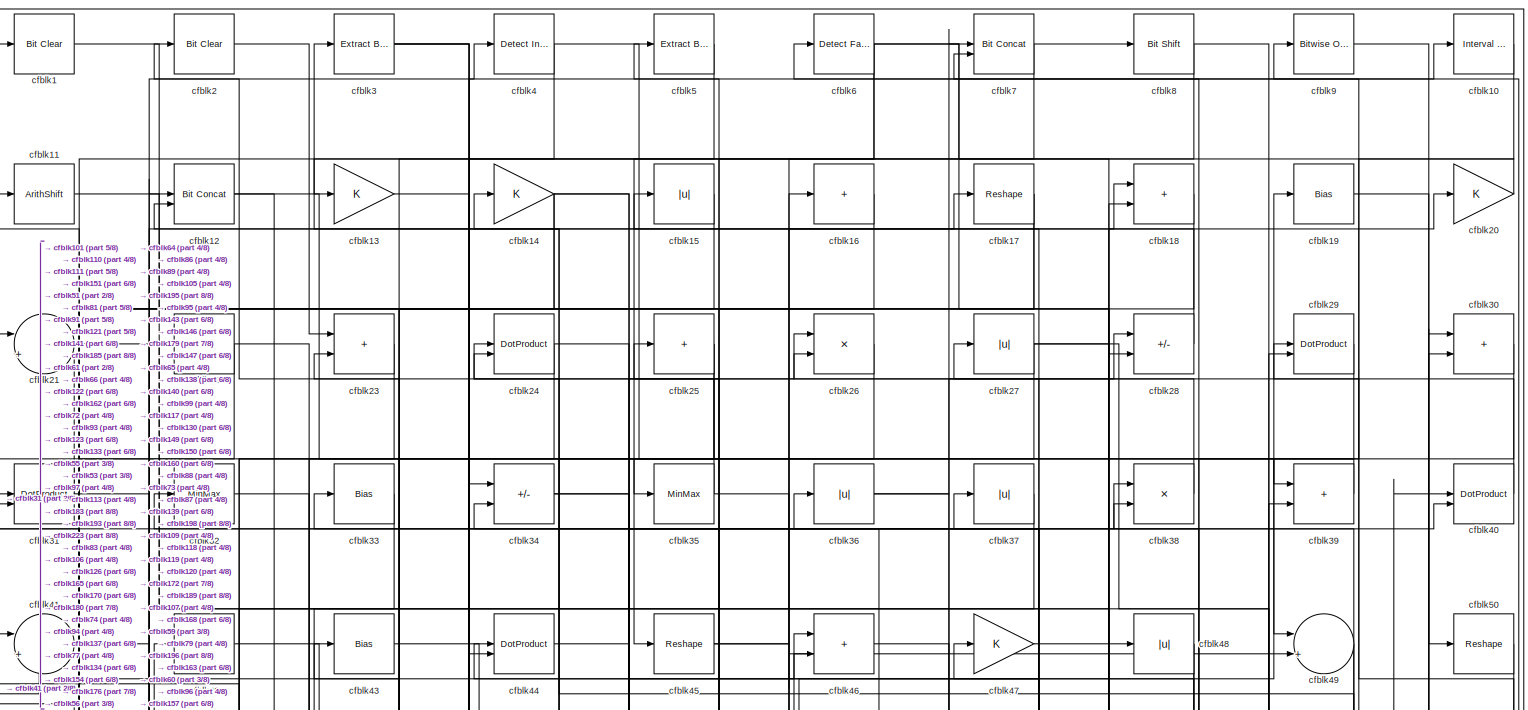
[diagram: root canvas - part 1/8, full width, top band]
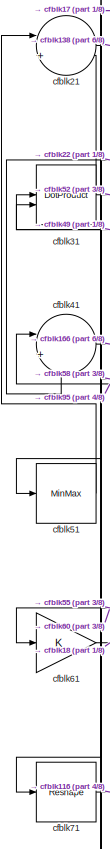
[diagram: root canvas - part 2/8, top left region]
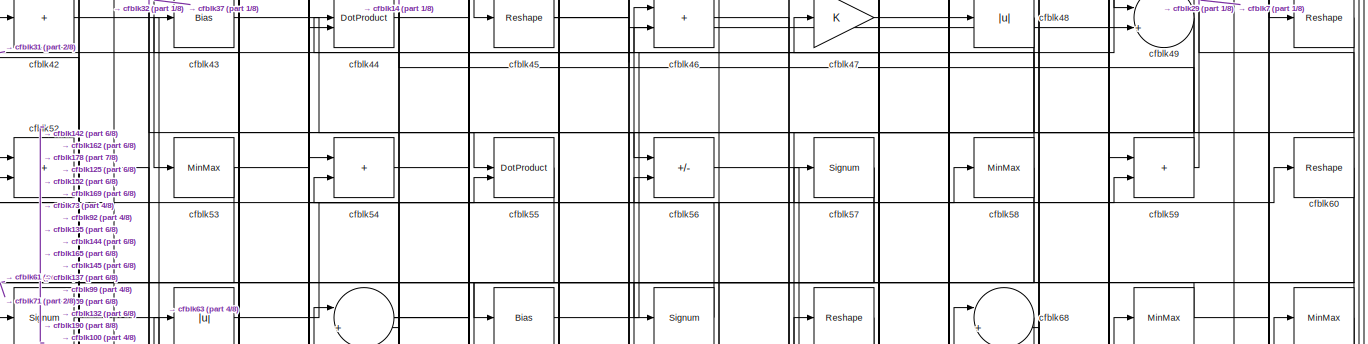
[diagram: root canvas - part 3/8, full width, top band]
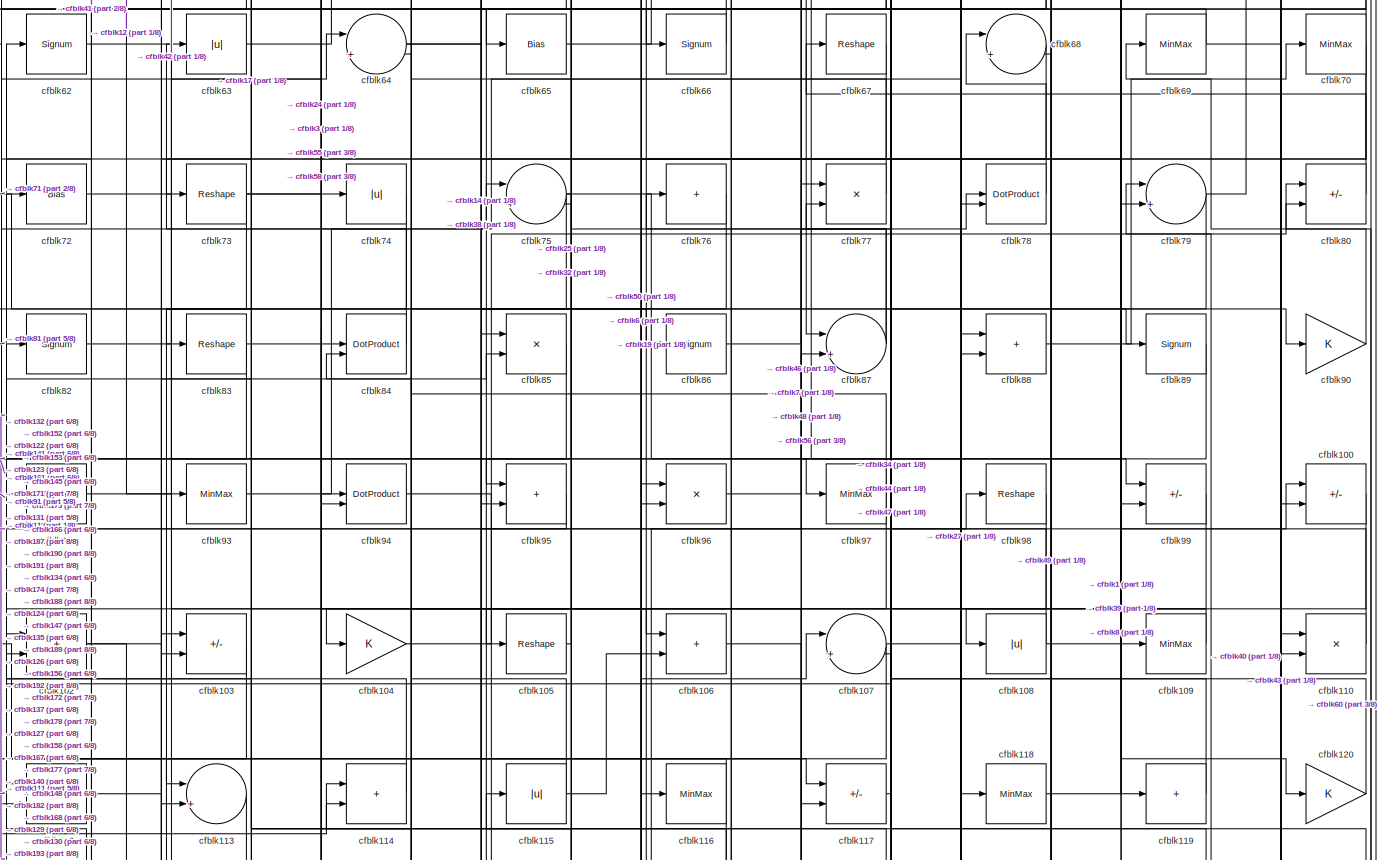
[diagram: root canvas - part 4/8, full width, middle band]
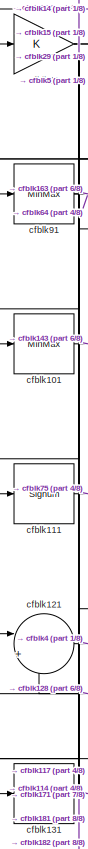
[diagram: root canvas - part 5/8, middle left region]
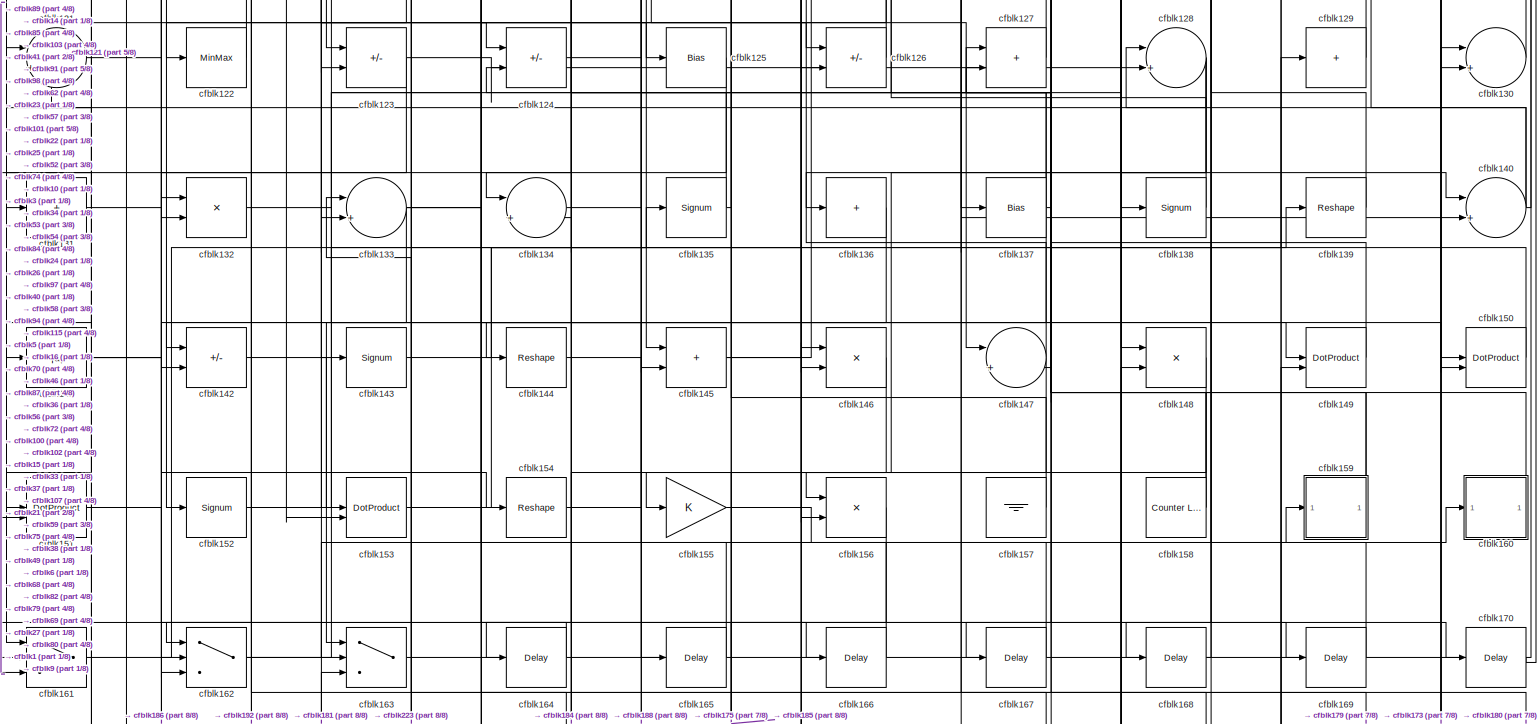
[diagram: root canvas - part 6/8, full width, middle band]
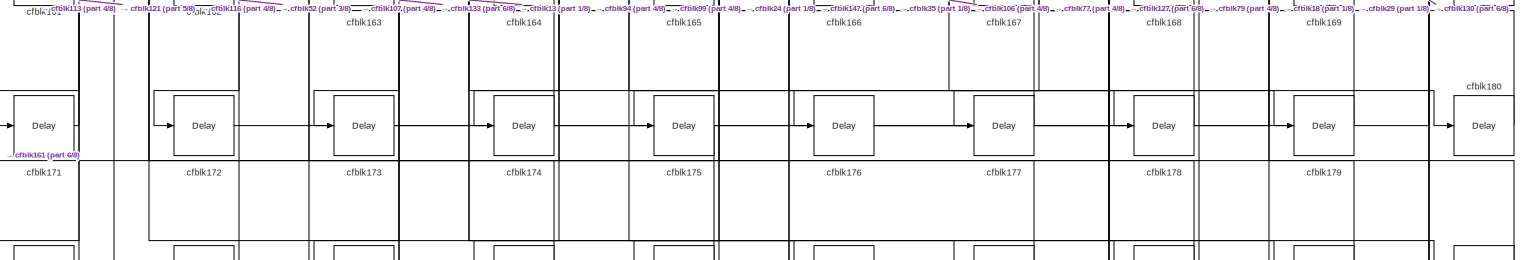
[diagram: root canvas - part 7/8, full width, bottom band]
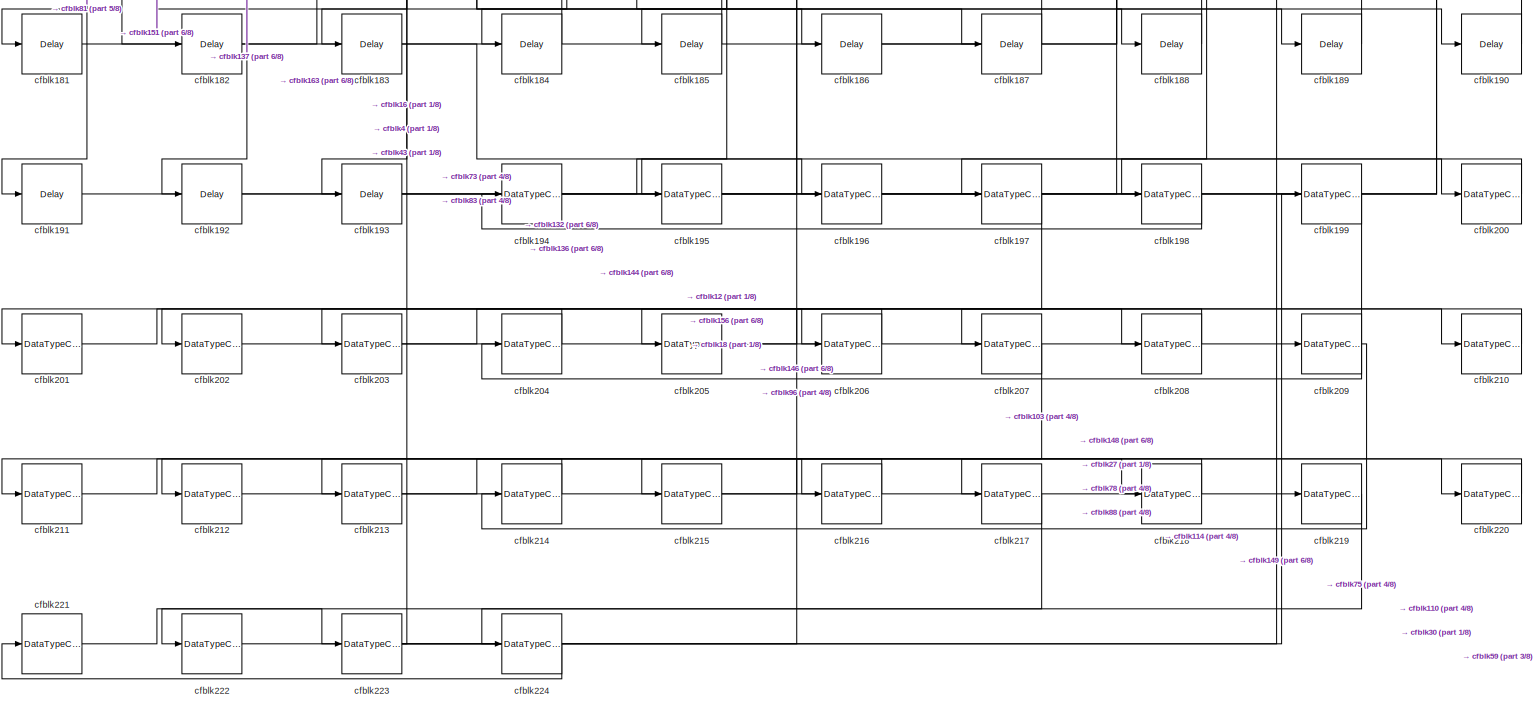
[diagram: root canvas - part 8/8, full width, bottom band]
MODEL slx_d020cfffdb7f
KIND model
CONFIG AbsTol = auto
CONFIG EnableMultiTasking = off
CONFIG FixedStep = auto
CONFIG MaxStep = auto
CONFIG MinStep = auto
CONFIG RelTol = 1e-3
CONFIG SampleTimeConstraint = Unconstrained
CONFIG SolverName = VariableStepAuto
CONFIG StartTime = 0.0
CONFIG StopTime = 10.0
BLOCK [Reference] cfblk1  REF=simulink/Logic and Bit
Operations/Bit Clear
  LibrarySourceBlock = hdlsllib/Logic and Bit\nOperations/Bit Clear
  SourceBlock = simulink/Logic and Bit\nOperations/Bit Clear
  SourceType = Bit Clear
BLOCK [Reference] cfblk10  REF=hdlsllib/Logic and Bit
Operations/Interval Test
  SourceBlock = hdlsllib/Logic and Bit\nOperations/Interval Test
  SourceType = Interval Test
BLOCK [Sum] cfblk100
  IconShape = rectangular
  Inputs = +-
BLOCK [MinMax] cfblk101
BLOCK [Sum] cfblk102
  IconShape = rectangular
BLOCK [Sum] cfblk103
  IconShape = rectangular
  Inputs = +-
BLOCK [Gain] cfblk104
BLOCK [Reshape] cfblk105
BLOCK [Sum] cfblk106
  IconShape = rectangular
BLOCK [Sum] cfblk107
  Inputs = |++
BLOCK [Abs] cfblk108
  SaturateOnIntegerOverflow = off
BLOCK [MinMax] cfblk109
BLOCK [ArithShift] cfblk11
  BitShiftNumber = 8
  InputPortMap = u0
BLOCK [Product] cfblk110
  Inputs = */
  RndMeth = Zero
  SaturateOnIntegerOverflow = on
BLOCK [Signum] cfblk111
BLOCK [Product] cfblk112
  Inputs = */
  RndMeth = Zero
  SaturateOnIntegerOverflow = on
BLOCK [Sum] cfblk113
  Inputs = |++
BLOCK [Sum] cfblk114
  IconShape = rectangular
BLOCK [Abs] cfblk115
  SaturateOnIntegerOverflow = off
BLOCK [MinMax] cfblk116
BLOCK [Sum] cfblk117
  IconShape = rectangular
  Inputs = +-
BLOCK [MinMax] cfblk118
BLOCK [Sum] cfblk119
  IconShape = rectangular
  Inputs = +
BLOCK [Reference] cfblk12  REF=hdlsllib/Logic and Bit
Operations/Bit Concat
  SourceBlock = hdlsllib/Logic and Bit\nOperations/Bit Concat
  SourceType = Bit Concat
BLOCK [Gain] cfblk120
BLOCK [Sum] cfblk121
  Inputs = |++
BLOCK [MinMax] cfblk122
BLOCK [Sum] cfblk123
  IconShape = rectangular
  Inputs = +-
BLOCK [Sum] cfblk124
  IconShape = rectangular
  Inputs = +-
BLOCK [Bias] cfblk125
  Bias = 0.0
  SaturateOnIntegerOverflow = off
BLOCK [Sum] cfblk126
  IconShape = rectangular
  Inputs = +-
BLOCK [Sum] cfblk127
  IconShape = rectangular
BLOCK [Sum] cfblk128
  Inputs = |++
BLOCK [Sum] cfblk129
  IconShape = rectangular
  Inputs = +
BLOCK [Gain] cfblk13
BLOCK [Sum] cfblk130
  Inputs = |++
BLOCK [Sum] cfblk131
  IconShape = rectangular
  Inputs = +
BLOCK [Product] cfblk132
  Inputs = */
  RndMeth = Zero
  SaturateOnIntegerOverflow = on
BLOCK [Sum] cfblk133
  Inputs = |++
BLOCK [Sum] cfblk134
  Inputs = |++
BLOCK [Signum] cfblk135
BLOCK [Sum] cfblk136
  IconShape = rectangular
  Inputs = +
BLOCK [Bias] cfblk137
  Bias = 0.0
  SaturateOnIntegerOverflow = off
BLOCK [Signum] cfblk138
BLOCK [Reshape] cfblk139
BLOCK [Gain] cfblk14
BLOCK [Sum] cfblk140
  Inputs = |++
BLOCK [Abs] cfblk141
  SaturateOnIntegerOverflow = off
BLOCK [Sum] cfblk142
  IconShape = rectangular
  Inputs = +-
BLOCK [Signum] cfblk143
BLOCK [Reshape] cfblk144
BLOCK [Sum] cfblk145
  IconShape = rectangular
BLOCK [Product] cfblk146
  Inputs = */
  RndMeth = Zero
  SaturateOnIntegerOverflow = on
BLOCK [Sum] cfblk147
  Inputs = |++
BLOCK [Product] cfblk148
  Inputs = */
  RndMeth = Zero
  SaturateOnIntegerOverflow = on
BLOCK [DotProduct] cfblk149
  OutDataTypeStr = Inherit: Inherit via internal rule
BLOCK [Abs] cfblk15
  SaturateOnIntegerOverflow = off
BLOCK [DotProduct] cfblk150
  OutDataTypeStr = Inherit: Inherit via internal rule
BLOCK [DotProduct] cfblk151
  OutDataTypeStr = Inherit: Inherit via internal rule
BLOCK [Signum] cfblk152
BLOCK [DotProduct] cfblk153
  OutDataTypeStr = Inherit: Inherit via internal rule
BLOCK [Reshape] cfblk154
BLOCK [Gain] cfblk155
BLOCK [Product] cfblk156
  Inputs = */
  RndMeth = Zero
  SaturateOnIntegerOverflow = on
BLOCK [Ground] cfblk157
BLOCK [Reference] cfblk158  REF=hdlsllib/Sources/Counter
Limited
  SourceBlock = hdlsllib/Sources/Counter\nLimited
  SourceType = Counter Limited
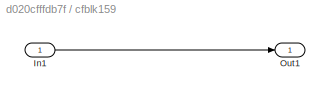
BLOCK [SubSystem] cfblk159
  LibrarySourceBlock = hdlsllib/Ports &\nSubsystems/Subsystem
BLOCK [Inport] cfblk159/In1
BLOCK [Outport] cfblk159/Out1
BLOCK [Sum] cfblk16
  IconShape = rectangular
  Inputs = +
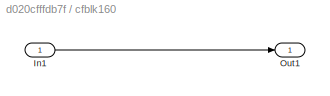
BLOCK [SubSystem] cfblk160
  LibrarySourceBlock = hdlsllib/Ports &\nSubsystems/Subsystem
BLOCK [Inport] cfblk160/In1
BLOCK [Outport] cfblk160/Out1
BLOCK [Switch] cfblk161
  InputSameDT = off
  SaturateOnIntegerOverflow = off
BLOCK [Switch] cfblk162
  InputSameDT = off
  SaturateOnIntegerOverflow = off
BLOCK [Switch] cfblk163
  InputSameDT = off
  SaturateOnIntegerOverflow = off
BLOCK [Delay] cfblk164
  InputPortMap = u0
  SampleTime = 1
BLOCK [Delay] cfblk165
  InputPortMap = u0
  SampleTime = 1
BLOCK [Delay] cfblk166
  InputPortMap = u0
  SampleTime = 1
BLOCK [Delay] cfblk167
  InputPortMap = u0
  SampleTime = 1
BLOCK [Delay] cfblk168
  InputPortMap = u0
  SampleTime = 1
BLOCK [Delay] cfblk169
  InputPortMap = u0
  SampleTime = 1
BLOCK [Reshape] cfblk17
BLOCK [Delay] cfblk170
  InputPortMap = u0
  SampleTime = 1
BLOCK [Delay] cfblk171
  InputPortMap = u0
  SampleTime = 1
BLOCK [Delay] cfblk172
  InputPortMap = u0
  SampleTime = 1
BLOCK [Delay] cfblk173
  InputPortMap = u0
  SampleTime = 1
BLOCK [Delay] cfblk174
  InputPortMap = u0
  SampleTime = 1
BLOCK [Delay] cfblk175
  InputPortMap = u0
  SampleTime = 1
BLOCK [Delay] cfblk176
  InputPortMap = u0
  SampleTime = 1
BLOCK [Delay] cfblk177
  InputPortMap = u0
  SampleTime = 1
BLOCK [Delay] cfblk178
  InputPortMap = u0
  SampleTime = 1
BLOCK [Delay] cfblk179
  InputPortMap = u0
  SampleTime = 1
BLOCK [Sum] cfblk18
  IconShape = rectangular
BLOCK [Delay] cfblk180
  InputPortMap = u0
  SampleTime = 1
BLOCK [Delay] cfblk181
  InputPortMap = u0
  SampleTime = 1
BLOCK [Delay] cfblk182
  InputPortMap = u0
  SampleTime = 1
BLOCK [Delay] cfblk183
  InputPortMap = u0
  SampleTime = 1
BLOCK [Delay] cfblk184
  InputPortMap = u0
  SampleTime = 1
BLOCK [Delay] cfblk185
  InputPortMap = u0
  SampleTime = 1
BLOCK [Delay] cfblk186
  InputPortMap = u0
  SampleTime = 1
BLOCK [Delay] cfblk187
  InputPortMap = u0
  SampleTime = 1
BLOCK [Delay] cfblk188
  InputPortMap = u0
  SampleTime = 1
BLOCK [Delay] cfblk189
  InputPortMap = u0
  SampleTime = 1
BLOCK [Bias] cfblk19
  Bias = 0.0
  SaturateOnIntegerOverflow = off
BLOCK [Delay] cfblk190
  InputPortMap = u0
  SampleTime = 1
BLOCK [Delay] cfblk191
  InputPortMap = u0
  SampleTime = 1
BLOCK [Delay] cfblk192
  InputPortMap = u0
  SampleTime = 1
BLOCK [Delay] cfblk193
  InputPortMap = u0
  SampleTime = 1
BLOCK [DataTypeConversion] cfblk194
  RndMeth = Floor
  SaturateOnIntegerOverflow = off
BLOCK [DataTypeConversion] cfblk195
  OutDataTypeStr = uint8
  RndMeth = Floor
  SaturateOnIntegerOverflow = off
BLOCK [DataTypeConversion] cfblk196
  OutDataTypeStr = uint8
  RndMeth = Floor
  SaturateOnIntegerOverflow = off
BLOCK [DataTypeConversion] cfblk197
  RndMeth = Floor
  SaturateOnIntegerOverflow = off
BLOCK [DataTypeConversion] cfblk198
  OutDataTypeStr = uint8
  RndMeth = Floor
  SaturateOnIntegerOverflow = off
BLOCK [DataTypeConversion] cfblk199
  RndMeth = Floor
  SaturateOnIntegerOverflow = off
BLOCK [Reference] cfblk2  REF=simulink/Logic and Bit
Operations/Bit Clear
  LibrarySourceBlock = hdlsllib/Logic and Bit\nOperations/Bit Clear
  SourceBlock = simulink/Logic and Bit\nOperations/Bit Clear
  SourceType = Bit Clear
BLOCK [Gain] cfblk20
BLOCK [DataTypeConversion] cfblk200
  OutDataTypeStr = uint8
  RndMeth = Floor
  SaturateOnIntegerOverflow = off
BLOCK [DataTypeConversion] cfblk201
  RndMeth = Floor
  SaturateOnIntegerOverflow = off
BLOCK [DataTypeConversion] cfblk202
  OutDataTypeStr = uint8
  RndMeth = Floor
  SaturateOnIntegerOverflow = off
BLOCK [DataTypeConversion] cfblk203
  RndMeth = Floor
  SaturateOnIntegerOverflow = off
BLOCK [DataTypeConversion] cfblk204
  OutDataTypeStr = uint8
  RndMeth = Floor
  SaturateOnIntegerOverflow = off
BLOCK [DataTypeConversion] cfblk205
  RndMeth = Floor
  SaturateOnIntegerOverflow = off
BLOCK [DataTypeConversion] cfblk206
  OutDataTypeStr = uint8
  RndMeth = Floor
  SaturateOnIntegerOverflow = off
BLOCK [DataTypeConversion] cfblk207
  RndMeth = Floor
  SaturateOnIntegerOverflow = off
BLOCK [DataTypeConversion] cfblk208
  OutDataTypeStr = uint8
  RndMeth = Floor
  SaturateOnIntegerOverflow = off
BLOCK [DataTypeConversion] cfblk209
  RndMeth = Floor
  SaturateOnIntegerOverflow = off
BLOCK [Sum] cfblk21
  Inputs = |++
BLOCK [DataTypeConversion] cfblk210
  OutDataTypeStr = uint8
  RndMeth = Floor
  SaturateOnIntegerOverflow = off
BLOCK [DataTypeConversion] cfblk211
  RndMeth = Floor
  SaturateOnIntegerOverflow = off
BLOCK [DataTypeConversion] cfblk212
  OutDataTypeStr = uint8
  RndMeth = Floor
  SaturateOnIntegerOverflow = off
BLOCK [DataTypeConversion] cfblk213
  RndMeth = Floor
  SaturateOnIntegerOverflow = off
BLOCK [DataTypeConversion] cfblk214
  OutDataTypeStr = uint8
  RndMeth = Floor
  SaturateOnIntegerOverflow = off
BLOCK [DataTypeConversion] cfblk215
  RndMeth = Floor
  SaturateOnIntegerOverflow = off
BLOCK [DataTypeConversion] cfblk216
  OutDataTypeStr = uint8
  RndMeth = Floor
  SaturateOnIntegerOverflow = off
BLOCK [DataTypeConversion] cfblk217
  RndMeth = Floor
  SaturateOnIntegerOverflow = off
BLOCK [DataTypeConversion] cfblk218
  OutDataTypeStr = uint8
  RndMeth = Floor
  SaturateOnIntegerOverflow = off
BLOCK [DataTypeConversion] cfblk219
  RndMeth = Floor
  SaturateOnIntegerOverflow = off
BLOCK [Sum] cfblk22
  IconShape = rectangular
  Inputs = +
BLOCK [DataTypeConversion] cfblk220
  OutDataTypeStr = uint8
  RndMeth = Floor
  SaturateOnIntegerOverflow = off
BLOCK [DataTypeConversion] cfblk221
  RndMeth = Floor
  SaturateOnIntegerOverflow = off
BLOCK [DataTypeConversion] cfblk222
  OutDataTypeStr = uint8
  RndMeth = Floor
  SaturateOnIntegerOverflow = off
BLOCK [DataTypeConversion] cfblk223
  RndMeth = Floor
  SaturateOnIntegerOverflow = off
BLOCK [DataTypeConversion] cfblk224
  OutDataTypeStr = uint8
  RndMeth = Floor
  SaturateOnIntegerOverflow = off
BLOCK [Sum] cfblk23
  IconShape = rectangular
BLOCK [DotProduct] cfblk24
  OutDataTypeStr = Inherit: Inherit via internal rule
BLOCK [Sum] cfblk25
  IconShape = rectangular
  Inputs = +
BLOCK [Product] cfblk26
  Inputs = */
  RndMeth = Zero
  SaturateOnIntegerOverflow = on
BLOCK [Abs] cfblk27
  SaturateOnIntegerOverflow = off
BLOCK [Sum] cfblk28
  IconShape = rectangular
  Inputs = +-
BLOCK [DotProduct] cfblk29
  OutDataTypeStr = Inherit: Inherit via internal rule
BLOCK [Reference] cfblk3  REF=simulink/Logic and Bit
Operations/Extract Bits
  LibrarySourceBlock = hdlsllib/Logic and Bit\nOperations/Extract Bits
  SourceBlock = simulink/Logic and Bit\nOperations/Extract Bits
  SourceType = Extract Bits
BLOCK [Sum] cfblk30
  IconShape = rectangular
BLOCK [DotProduct] cfblk31
  OutDataTypeStr = Inherit: Inherit via internal rule
BLOCK [MinMax] cfblk32
BLOCK [Bias] cfblk33
  Bias = 0.0
  SaturateOnIntegerOverflow = off
BLOCK [Sum] cfblk34
  IconShape = rectangular
  Inputs = +-
BLOCK [MinMax] cfblk35
BLOCK [Abs] cfblk36
  SaturateOnIntegerOverflow = off
BLOCK [Abs] cfblk37
  SaturateOnIntegerOverflow = off
BLOCK [Product] cfblk38
  Inputs = */
  RndMeth = Zero
  SaturateOnIntegerOverflow = on
BLOCK [Sum] cfblk39
  IconShape = rectangular
BLOCK [Reference] cfblk4  REF=simulink/Logic and Bit
Operations/Detect
Increase
  LibrarySourceBlock = hdlsllib/Logic and Bit\nOperations/Detect\nIncrease
  SourceBlock = simulink/Logic and Bit\nOperations/Detect\nIncrease
  SourceType = Detect Increase
BLOCK [DotProduct] cfblk40
  OutDataTypeStr = Inherit: Inherit via internal rule
BLOCK [Sum] cfblk41
  Inputs = |++
BLOCK [Sum] cfblk42
  IconShape = rectangular
  Inputs = +
BLOCK [Bias] cfblk43
  Bias = 0.0
  SaturateOnIntegerOverflow = off
BLOCK [DotProduct] cfblk44
  OutDataTypeStr = Inherit: Inherit via internal rule
BLOCK [Reshape] cfblk45
BLOCK [Sum] cfblk46
  IconShape = rectangular
BLOCK [Gain] cfblk47
BLOCK [Abs] cfblk48
  SaturateOnIntegerOverflow = off
BLOCK [Sum] cfblk49
  Inputs = |++
BLOCK [Reference] cfblk5  REF=simulink/Logic and Bit
Operations/Extract Bits
  LibrarySourceBlock = hdlsllib/Logic and Bit\nOperations/Extract Bits
  SourceBlock = simulink/Logic and Bit\nOperations/Extract Bits
  SourceType = Extract Bits
BLOCK [Reshape] cfblk50
BLOCK [MinMax] cfblk51
BLOCK [Sum] cfblk52
  IconShape = rectangular
BLOCK [MinMax] cfblk53
BLOCK [Sum] cfblk54
  IconShape = rectangular
BLOCK [DotProduct] cfblk55
  OutDataTypeStr = Inherit: Inherit via internal rule
BLOCK [Sum] cfblk56
  IconShape = rectangular
  Inputs = +-
BLOCK [Signum] cfblk57
BLOCK [MinMax] cfblk58
BLOCK [Sum] cfblk59
  IconShape = rectangular
BLOCK [Reference] cfblk6  REF=hdlsllib/Logic and Bit
Operations/Detect Fall
Nonpositive
  SourceBlock = hdlsllib/Logic and Bit\nOperations/Detect Fall\nNonpositive
  SourceType = Detect Fall Nonpositive
BLOCK [Reshape] cfblk60
BLOCK [Gain] cfblk61
BLOCK [Signum] cfblk62
BLOCK [Abs] cfblk63
  SaturateOnIntegerOverflow = off
BLOCK [Sum] cfblk64
  Inputs = |++
BLOCK [Bias] cfblk65
  Bias = 0.0
  SaturateOnIntegerOverflow = off
BLOCK [Signum] cfblk66
BLOCK [Reshape] cfblk67
BLOCK [Sum] cfblk68
  Inputs = |++
BLOCK [MinMax] cfblk69
BLOCK [Reference] cfblk7  REF=hdlsllib/Logic and Bit
Operations/Bit Concat
  SourceBlock = hdlsllib/Logic and Bit\nOperations/Bit Concat
  SourceType = Bit Concat
BLOCK [MinMax] cfblk70
BLOCK [Reshape] cfblk71
BLOCK [Bias] cfblk72
  Bias = 0.0
  SaturateOnIntegerOverflow = off
BLOCK [Reshape] cfblk73
BLOCK [Abs] cfblk74
  SaturateOnIntegerOverflow = off
BLOCK [Sum] cfblk75
  Inputs = |++
BLOCK [Sum] cfblk76
  IconShape = rectangular
  Inputs = +
BLOCK [Product] cfblk77
  Inputs = */
  RndMeth = Zero
  SaturateOnIntegerOverflow = on
BLOCK [DotProduct] cfblk78
  OutDataTypeStr = Inherit: Inherit via internal rule
BLOCK [Sum] cfblk79
  Inputs = |++
BLOCK [Reference] cfblk8  REF=hdlsllib/Logic and Bit
Operations/Bit Shift
  SourceBlock = hdlsllib/Logic and Bit\nOperations/Bit Shift
  SourceType = Bit Shift
BLOCK [Sum] cfblk80
  IconShape = rectangular
  Inputs = +-
BLOCK [Gain] cfblk81
BLOCK [Signum] cfblk82
BLOCK [Reshape] cfblk83
BLOCK [DotProduct] cfblk84
  OutDataTypeStr = Inherit: Inherit via internal rule
BLOCK [Product] cfblk85
  Inputs = */
  RndMeth = Zero
  SaturateOnIntegerOverflow = on
BLOCK [Signum] cfblk86
BLOCK [Sum] cfblk87
  Inputs = |++
BLOCK [Sum] cfblk88
  IconShape = rectangular
BLOCK [Signum] cfblk89
BLOCK [Reference] cfblk9  REF=simulink/Logic and Bit
Operations/Bitwise
Operator
  LibrarySourceBlock = hdlsllib/Logic and Bit\nOperations/Bitwise\nOperator
  SourceBlock = simulink/Logic and Bit\nOperations/Bitwise\nOperator
  SourceType = Bitwise Operator
BLOCK [Gain] cfblk90
BLOCK [MinMax] cfblk91
BLOCK [Signum] cfblk92
BLOCK [MinMax] cfblk93
BLOCK [DotProduct] cfblk94
  OutDataTypeStr = Inherit: Inherit via internal rule
BLOCK [Sum] cfblk95
  IconShape = rectangular
BLOCK [Product] cfblk96
  Inputs = */
  RndMeth = Zero
  SaturateOnIntegerOverflow = on
BLOCK [MinMax] cfblk97
BLOCK [Reshape] cfblk98
BLOCK [Sum] cfblk99
  IconShape = rectangular
  Inputs = +-
LINE cfblk100:1 -> cfblk167:1
LINE cfblk101:1 -> cfblk143:1
NET cfblk102:1 -> cfblk124:1, cfblk153:2
LINE cfblk103:1 -> cfblk132:2
LINE cfblk104:1 -> cfblk80:1
LINE cfblk105:1 -> cfblk25:1
LINE cfblk106:1 -> cfblk178:1
NET cfblk107:1 -> cfblk140:1, cfblk173:1
NET cfblk108:1 -> cfblk100:1, cfblk77:2
LINE cfblk109:1 -> cfblk108:1
LINE cfblk10:1 -> cfblk39:1
LINE cfblk110:1 -> cfblk11:1
LINE cfblk111:1 -> cfblk75:1
LINE cfblk112:1 -> cfblk113:2
LINE cfblk113:1 -> cfblk171:1
LINE cfblk114:1 -> cfblk92:1
NET cfblk115:1 -> cfblk106:2, cfblk84:2
NET cfblk116:1 -> cfblk112:1, cfblk172:1
LINE cfblk117:1 -> cfblk47:1
LINE cfblk118:1 -> cfblk39:2
LINE cfblk119:1 -> cfblk34:2
LINE cfblk11:1 -> cfblk88:1
LINE cfblk120:1 -> cfblk44:1
LINE cfblk121:1 -> cfblk4:1
LINE cfblk122:1 -> cfblk62:1
NET cfblk123:1 -> cfblk128:2, cfblk151:2
LINE cfblk124:1 -> cfblk98:1
LINE cfblk125:1 -> cfblk142:2
LINE cfblk126:1 -> cfblk23:2
LINE cfblk127:1 -> cfblk102:2
NET cfblk128:1 -> cfblk121:2, cfblk136:1, cfblk156:1
LINE cfblk129:1 -> cfblk82:1
NET cfblk12:1 -> cfblk74:1, cfblk93:1
LINE cfblk130:1 -> cfblk27:1
LINE cfblk131:1 -> cfblk114:1
LINE cfblk132:1 -> cfblk59:2
NET cfblk133:1 -> cfblk10:1, cfblk150:2, cfblk153:1
LINE cfblk134:1 -> cfblk40:2
NET cfblk135:1 -> cfblk115:1, cfblk54:2
LINE cfblk136:1 -> cfblk184:1
NET cfblk137:1 -> cfblk147:2, cfblk192:1, cfblk24:2, cfblk56:2
LINE cfblk138:1 -> cfblk36:1
LINE cfblk139:1 -> cfblk6:1
LINE cfblk13:1 -> cfblk180:1
NET cfblk140:1 -> cfblk38:2, cfblk79:1, cfblk80:2
NET cfblk141:1 -> cfblk149:1, cfblk154:1, cfblk22:1
LINE cfblk142:1 -> cfblk163:1
LINE cfblk143:1 -> cfblk16:1
LINE cfblk144:1 -> cfblk188:1
NET cfblk145:1 -> cfblk107:1, cfblk87:2
LINE cfblk146:1 -> cfblk164:1
NET cfblk147:1 -> cfblk175:1, cfblk46:1
LINE cfblk148:1 -> cfblk155:1
LINE cfblk149:1 -> cfblk33:1
NET cfblk14:1 -> cfblk101:1, cfblk151:1, cfblk56:1, cfblk86:1
LINE cfblk150:1 -> cfblk37:1
LINE cfblk151:1 -> cfblk186:1
NET cfblk152:1 -> cfblk54:1, cfblk85:2
LINE cfblk153:1 -> cfblk129:1
LINE cfblk154:1 -> cfblk46:2
LINE cfblk155:1 -> cfblk159:1
LINE cfblk156:1 -> cfblk185:1
LINE cfblk157:1 -> cfblk5:1
NET cfblk158:1 -> cfblk102:1, cfblk124:2
LINE cfblk159/In1:1 -> cfblk159/Out1:1
NET cfblk159:1 -> cfblk127:1, cfblk57:1
LINE cfblk15:1 -> cfblk81:1
LINE cfblk160/In1:1 -> cfblk160/Out1:1
LINE cfblk160:1 -> cfblk15:1
LINE cfblk161:1 -> cfblk135:1
NET cfblk162:1 -> cfblk139:1, cfblk160:1
LINE cfblk163:1 -> cfblk9:1
LINE cfblk164:1 -> cfblk161:2
LINE cfblk165:1 -> cfblk34:1
LINE cfblk166:1 -> cfblk84:1
LINE cfblk167:1 -> cfblk85:1
LINE cfblk168:1 -> cfblk68:2
LINE cfblk169:1 -> cfblk128:1
LINE cfblk16:1 -> cfblk193:1
LINE cfblk170:1 -> cfblk1:1
LINE cfblk171:1 -> cfblk121:1
LINE cfblk172:1 -> cfblk29:2
LINE cfblk173:1 -> cfblk130:1
LINE cfblk174:1 -> cfblk94:1
LINE cfblk175:1 -> cfblk161:3
LINE cfblk176:1 -> cfblk18:2
LINE cfblk177:1 -> cfblk77:1
LINE cfblk178:1 -> cfblk52:2
LINE cfblk179:1 -> cfblk127:2
NET cfblk17:1 -> cfblk113:1, cfblk51:1
LINE cfblk180:1 -> cfblk133:1
LINE cfblk181:1 -> cfblk163:3
LINE cfblk182:1 -> cfblk78:2
LINE cfblk183:1 -> cfblk196:1
LINE cfblk184:1 -> cfblk132:1
LINE cfblk185:1 -> cfblk12:1
LINE cfblk186:1 -> cfblk148:2
LINE cfblk187:1 -> cfblk103:1
LINE cfblk188:1 -> cfblk114:2
LINE cfblk189:1 -> cfblk75:2
LINE cfblk18:1 -> cfblk195:1
LINE cfblk190:1 -> cfblk59:1
LINE cfblk191:1 -> cfblk88:2
LINE cfblk192:1 -> cfblk96:1
LINE cfblk193:1 -> cfblk110:1
LINE cfblk194:1 -> cfblk200:1
LINE cfblk195:1 -> cfblk30:1
LINE cfblk196:1 -> cfblk30:2
LINE cfblk197:1 -> cfblk202:1
LINE cfblk198:1 -> cfblk194:1
LINE cfblk199:1 -> cfblk204:1
LINE cfblk19:1 -> cfblk50:1
LINE cfblk1:1 -> cfblk119:1
LINE cfblk200:1 -> cfblk197:1
LINE cfblk201:1 -> cfblk206:1
LINE cfblk202:1 -> cfblk199:1
LINE cfblk203:1 -> cfblk208:1
LINE cfblk204:1 -> cfblk201:1
LINE cfblk205:1 -> cfblk210:1
LINE cfblk206:1 -> cfblk203:1
LINE cfblk207:1 -> cfblk212:1
LINE cfblk208:1 -> cfblk205:1
LINE cfblk209:1 -> cfblk214:1
LINE cfblk20:1 -> cfblk13:1
LINE cfblk210:1 -> cfblk207:1
LINE cfblk211:1 -> cfblk216:1
LINE cfblk212:1 -> cfblk209:1
LINE cfblk213:1 -> cfblk218:1
LINE cfblk214:1 -> cfblk211:1
LINE cfblk215:1 -> cfblk220:1
LINE cfblk216:1 -> cfblk213:1
LINE cfblk217:1 -> cfblk222:1
LINE cfblk218:1 -> cfblk215:1
LINE cfblk219:1 -> cfblk224:1
LINE cfblk21:1 -> cfblk138:1
LINE cfblk220:1 -> cfblk217:1
LINE cfblk221:1 -> cfblk223:1
LINE cfblk222:1 -> cfblk219:1
NET cfblk223:1 -> cfblk146:1, cfblk149:2, cfblk43:1
LINE cfblk224:1 -> cfblk221:1
NET cfblk22:1 -> cfblk133:2, cfblk41:2
LINE cfblk23:1 -> cfblk122:1
NET cfblk24:1 -> cfblk176:1, cfblk94:2
NET cfblk25:1 -> cfblk123:2, cfblk72:1
LINE cfblk26:1 -> cfblk134:1
NET cfblk27:1 -> cfblk109:1, cfblk189:1, cfblk83:1
LINE cfblk28:1 -> cfblk3:1
LINE cfblk29:1 -> cfblk111:1
LINE cfblk2:1 -> cfblk23:1
LINE cfblk30:1 -> cfblk198:1
NET cfblk31:1 -> cfblk21:2, cfblk52:1
LINE cfblk32:1 -> cfblk55:1
LINE cfblk33:1 -> cfblk162:1
NET cfblk34:1 -> cfblk79:2, cfblk89:1
NET cfblk35:1 -> cfblk179:1, cfblk2:1
NET cfblk36:1 -> cfblk140:2, cfblk28:1
LINE cfblk37:1 -> cfblk53:1
LINE cfblk38:1 -> cfblk26:2
LINE cfblk39:1 -> cfblk35:1
NET cfblk3:1 -> cfblk106:1, cfblk126:1, cfblk170:1
LINE cfblk40:1 -> cfblk24:1
LINE cfblk41:1 -> cfblk166:1
LINE cfblk42:1 -> cfblk97:1
LINE cfblk43:1 -> cfblk110:2
LINE cfblk44:1 -> cfblk26:1
NET cfblk45:1 -> cfblk17:1, cfblk49:2
LINE cfblk46:1 -> cfblk99:2
LINE cfblk47:1 -> cfblk20:1
NET cfblk48:1 -> cfblk73:1, cfblk87:1
NET cfblk49:1 -> cfblk107:2, cfblk168:1, cfblk31:2
NET cfblk4:1 -> cfblk183:1, cfblk49:1
LINE cfblk50:1 -> cfblk96:2
LINE cfblk51:1 -> cfblk21:1
LINE cfblk52:1 -> cfblk125:1
NET cfblk53:1 -> cfblk162:2, cfblk169:1
LINE cfblk54:1 -> cfblk165:1
LINE cfblk55:1 -> cfblk71:1
LINE cfblk56:1 -> cfblk99:1
NET cfblk57:1 -> cfblk142:1, cfblk162:3
NET cfblk58:1 -> cfblk144:1, cfblk145:1, cfblk31:1
NET cfblk59:1 -> cfblk14:1, cfblk29:1
LINE cfblk5:1 -> cfblk91:1
NET cfblk60:1 -> cfblk100:2, cfblk61:1, cfblk7:2
LINE cfblk61:1 -> cfblk18:1
LINE cfblk62:1 -> cfblk145:2
LINE cfblk63:1 -> cfblk60:1
NET cfblk64:1 -> cfblk117:1, cfblk38:1
LINE cfblk65:1 -> cfblk19:1
LINE cfblk66:1 -> cfblk42:1
LINE cfblk67:1 -> cfblk112:2
LINE cfblk68:1 -> cfblk103:2
NET cfblk69:1 -> cfblk130:2, cfblk66:1
NET cfblk6:1 -> cfblk118:1, cfblk146:2, cfblk28:2, cfblk44:2
NET cfblk70:1 -> cfblk126:2, cfblk156:2, cfblk65:1
LINE cfblk71:1 -> cfblk116:1
LINE cfblk72:1 -> cfblk137:1
NET cfblk73:1 -> cfblk131:1, cfblk187:1, cfblk55:2
LINE cfblk74:1 -> cfblk123:1
NET cfblk75:1 -> cfblk104:1, cfblk105:1, cfblk148:1
LINE cfblk76:1 -> cfblk95:2
LINE cfblk77:1 -> cfblk12:2
LINE cfblk78:1 -> cfblk68:1
NET cfblk79:1 -> cfblk177:1, cfblk40:1
NET cfblk7:1 -> cfblk45:1, cfblk8:1
LINE cfblk80:1 -> cfblk67:1
NET cfblk81:1 -> cfblk117:2, cfblk181:1, cfblk182:1
LINE cfblk82:1 -> cfblk90:1
NET cfblk83:1 -> cfblk190:1, cfblk191:1
LINE cfblk84:1 -> cfblk63:1
LINE cfblk85:1 -> cfblk141:1
LINE cfblk86:1 -> cfblk7:1
NET cfblk87:1 -> cfblk32:1, cfblk76:1
LINE cfblk88:1 -> cfblk70:1
LINE cfblk89:1 -> cfblk161:1
NET cfblk8:1 -> cfblk120:1, cfblk95:1
LINE cfblk90:1 -> cfblk69:1
NET cfblk91:1 -> cfblk163:2, cfblk64:1
LINE cfblk92:1 -> cfblk58:1
LINE cfblk93:1 -> cfblk48:1
LINE cfblk94:1 -> cfblk147:1
LINE cfblk95:1 -> cfblk41:1
LINE cfblk96:1 -> cfblk78:1
NET cfblk97:1 -> cfblk134:2, cfblk64:2
LINE cfblk98:1 -> cfblk152:1
LINE cfblk99:1 -> cfblk174:1
LINE cfblk9:1 -> cfblk150:1
note: NET lines group one-source signal fan-out (src -> all destinations, sorted); 1:1 wires keep LINE
